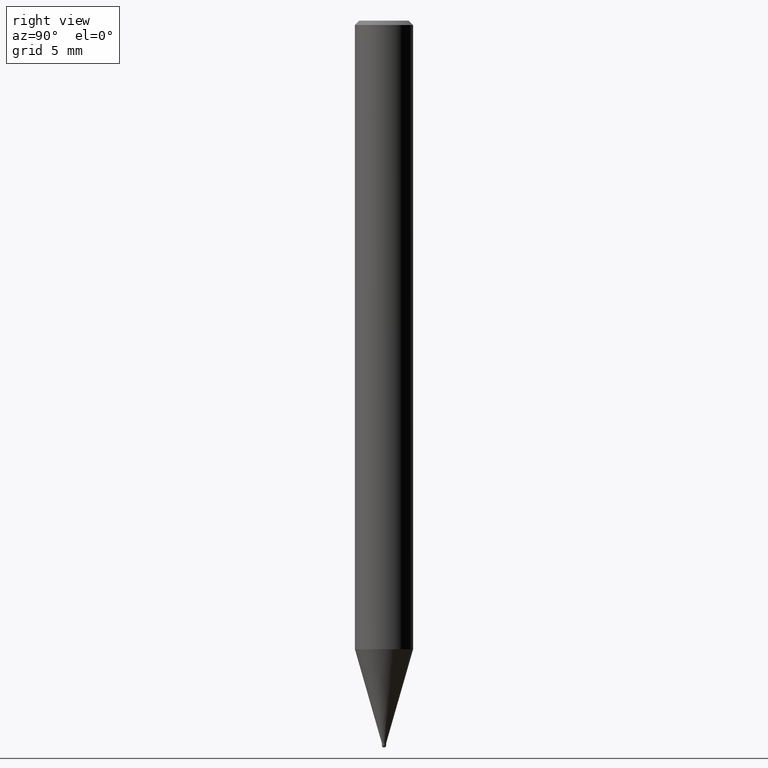
[diagram: clean part render]
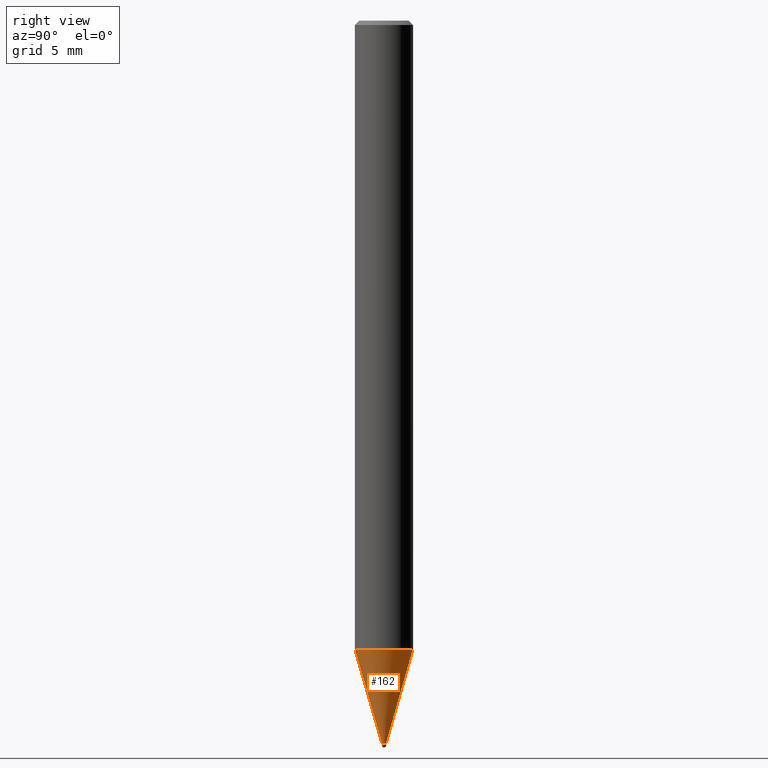
[diagram: same view with one face highlighted and labeled with its STEP entity id]
A machine part, right view. The second image highlights one B-rep face of the part: STEP entity #162.
In plain terms, the highlighted conical surface has half-angle 15.999 deg.
Its self-contained STEP definition (entity closure, byte-faithful):
#98=EDGE_CURVE('',#182,#126,#226,.T.);
#108=VERTEX_POINT('',#237);
#120=EDGE_CURVE('',#126,#108,#251,.T.);
#126=VERTEX_POINT('',#257);
#152=EDGE_CURVE('',#182,#164,#287,.T.);
#162=ADVANCED_FACE('',(#297),#298,.T.);
#164=VERTEX_POINT('',#300);
#176=EDGE_CURVE('',#108,#164,#315,.T.);
#182=VERTEX_POINT('',#321);
#226=LINE('',#360,#361);
#237=CARTESIAN_POINT('',(1.83629722755666E-017,-0.14995,-49.7));
#251=CIRCLE('',#392,0.14995);
#257=CARTESIAN_POINT('',(0.0,0.14995,-49.7));
#287=CIRCLE('',#438,1.99995);
#297=FACE_OUTER_BOUND('',#450,.T.);
#298=CONICAL_SURFACE('',#451,1.07495,0.279241047070178);
#300=CARTESIAN_POINT('',(2.44915147732706E-016,-1.99995,-43.248));
#315=LINE('',#472,#473);
#321=CARTESIAN_POINT('',(0.0,1.99995,-43.248));
#360=CARTESIAN_POINT('',(-1.31639060004136E-016,1.07495,-46.474));
#361=VECTOR('',#522,1.0);
#392=AXIS2_PLACEMENT_3D('',#547,#548,#549);
#438=AXIS2_PLACEMENT_3D('',#590,#591,#592);
#450=EDGE_LOOP('',(#600,#601,#602,#603));
#451=AXIS2_PLACEMENT_3D('',#604,#605,#606);
#472=CARTESIAN_POINT('',(1.31639060004136E-016,-1.07495,-46.474));
#473=VECTOR('',#633,1.0);
#522=DIRECTION('',(3.37533562982631E-017,-0.275626173201767,-0.961264902431244));
#547=CARTESIAN_POINT('',(0.0,0.0,-49.7));
#548=DIRECTION('',(0.0,0.0,-1.0));
#549=DIRECTION('',(0.0,1.0,0.0));
#590=CARTESIAN_POINT('',(0.0,0.0,-43.248));
#591=DIRECTION('',(0.0,0.0,-1.0));
#592=DIRECTION('',(0.0,1.0,0.0));
#600=ORIENTED_EDGE('',*,*,#98,.F.);
#601=ORIENTED_EDGE('',*,*,#152,.T.);
#602=ORIENTED_EDGE('',*,*,#176,.F.);
#603=ORIENTED_EDGE('',*,*,#120,.F.);
#604=CARTESIAN_POINT('',(0.0,0.0,-46.474));
#605=DIRECTION('',(-0.0,-0.0,1.0));
#606=DIRECTION('',(0.0,1.0,0.0));
#633=DIRECTION('',(3.37533562982631E-017,-0.275626173201767,0.961264902431244));